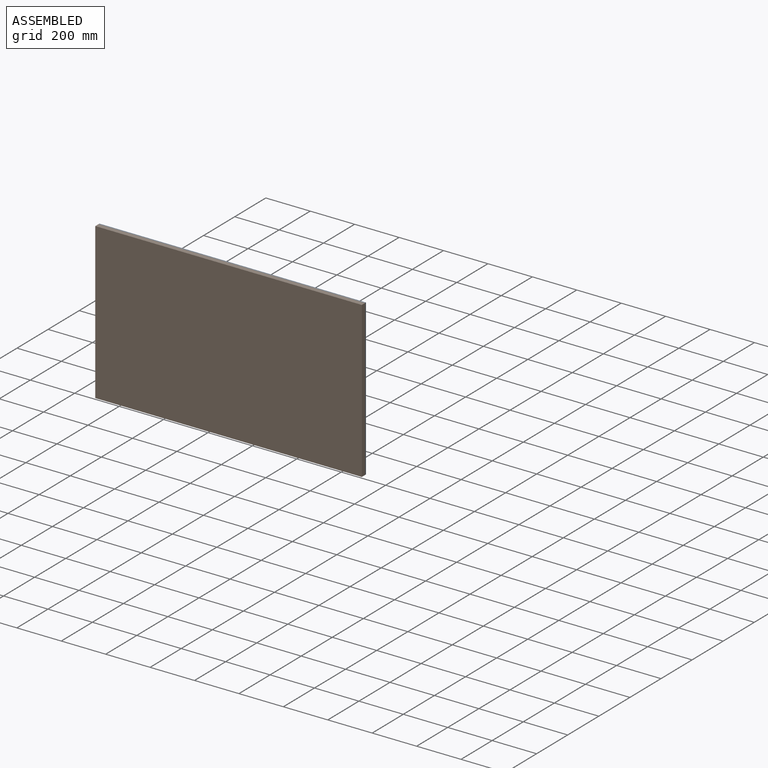
[diagram: assembled view]
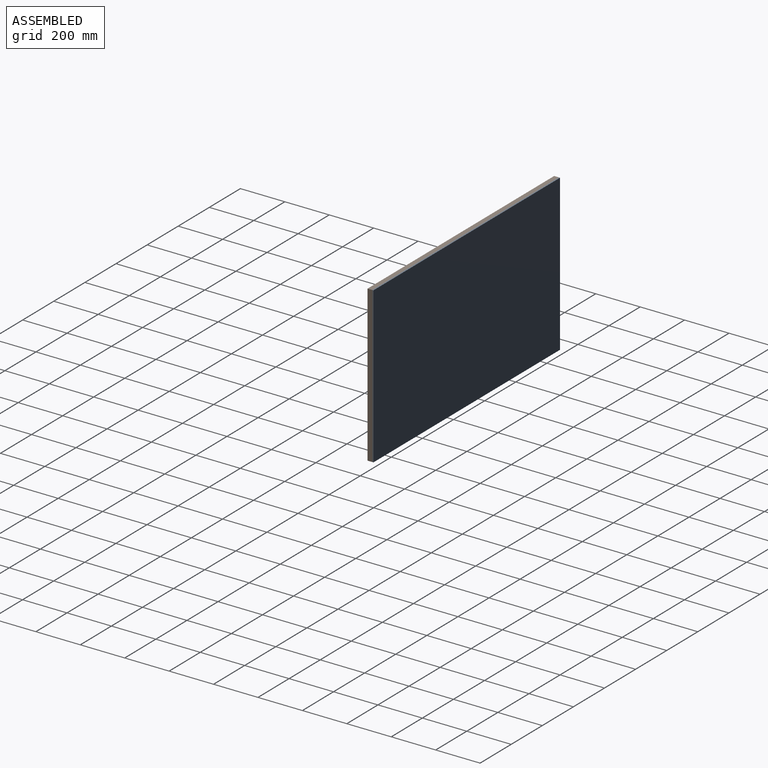
[diagram: assembled view, second angle]
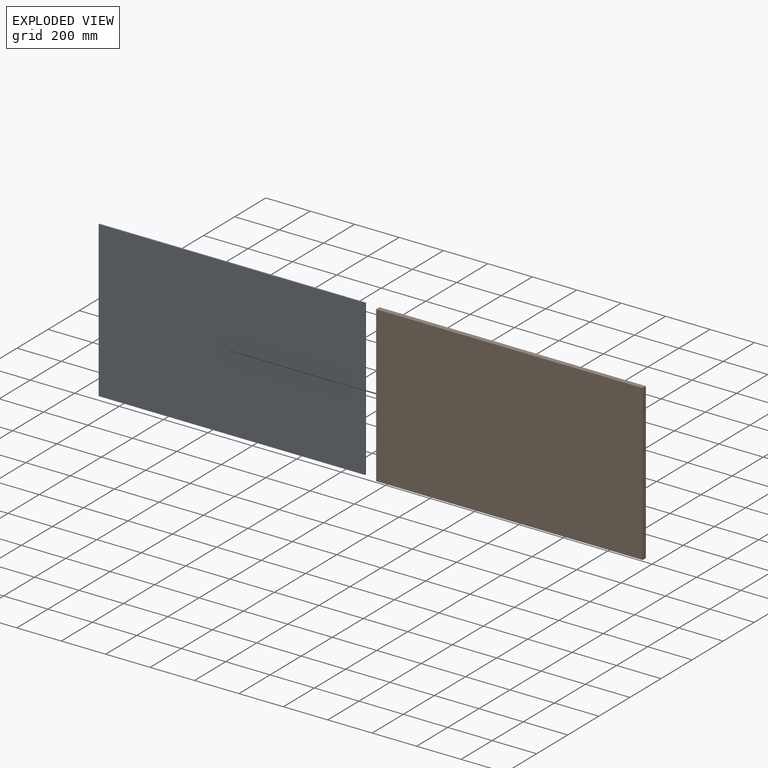
[diagram: exploded view]
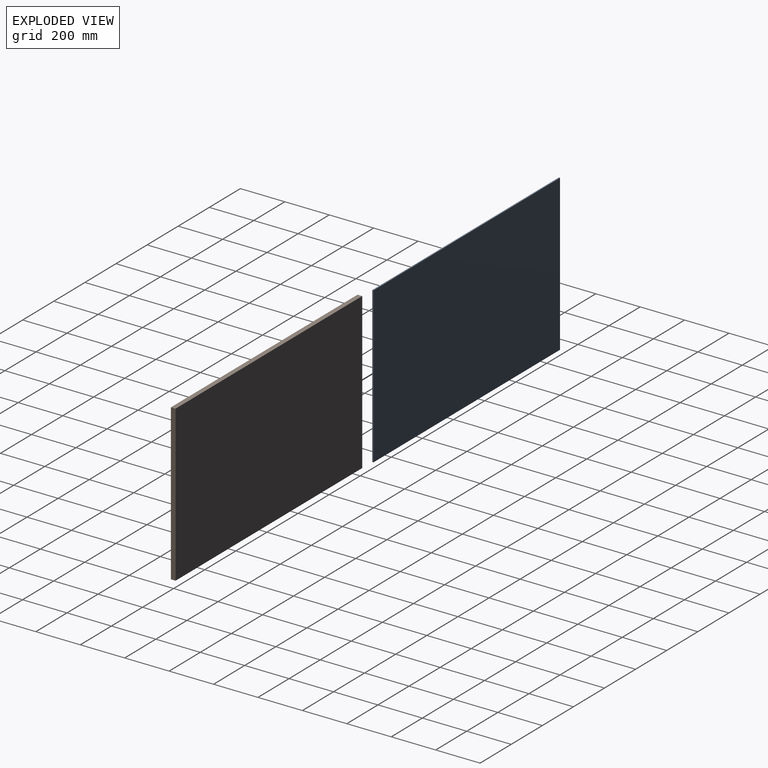
[diagram: exploded view, second angle]
ASSEMBLY  parts=2 mates=3
PART A: 6 faces, bbox 1200x5.5x700 mm
  f0: plane 700x5.5mm, normal (1,0,0), area 3850mm2, adj f1,f3,f4,f5
  f1: plane 1200x5.5mm, normal (0,0,1), area 6600mm2, adj f0,f2,f4,f5
  f2: plane 700x5.5mm, normal (-1,0,0), area 3850mm2, adj f1,f3,f4,f5
  f3: plane 1200x5.5mm, normal (0,0,-1), area 6600mm2, adj f0,f2,f4,f5
  f4: plane 1200x700mm, normal (0,-1,0), area 840000mm2, adj f0,f1,f2,f3
  f5: plane 1200x700mm, normal (0,1,0), area 840000mm2, adj f0,f1,f2,f3
PART B: 6 faces, bbox 1200x21x700 mm
  f0: plane 1200x21mm, normal (0,0,1), area 25200mm2, adj f1,f3,f4,f5
  f1: plane 700x21mm, normal (-1,0,0), area 14700mm2, adj f0,f2,f4,f5
  f2: plane 1200x21mm, normal (0,0,-1), area 25200mm2, adj f1,f3,f4,f5
  f3: plane 700x21mm, normal (1,0,0), area 14700mm2, adj f0,f2,f4,f5
  f4: plane 1200x700mm, normal (0,-1,0), area 840000mm2, adj f0,f1,f2,f3
  f5: plane 1200x700mm, normal (0,1,0), area 840000mm2, adj f0,f1,f2,f3
PLACE A t=(464.84,-801.57,1091.48)mm
PLACE B t=(-887.45,-807.07,1786.84)mm
MATE planar A.f0 <-> B.f3  axis (1,0,0) through (312.55,-804.32,604.67)mm
MATE planar A.f4 <-> B.f5  axis (0,-1,0) through (-287.45,-807.07,604.67)mm
MATE planar A.f1 <-> B.f0  axis (0,0,1) through (-287.45,-804.32,954.67)mm
